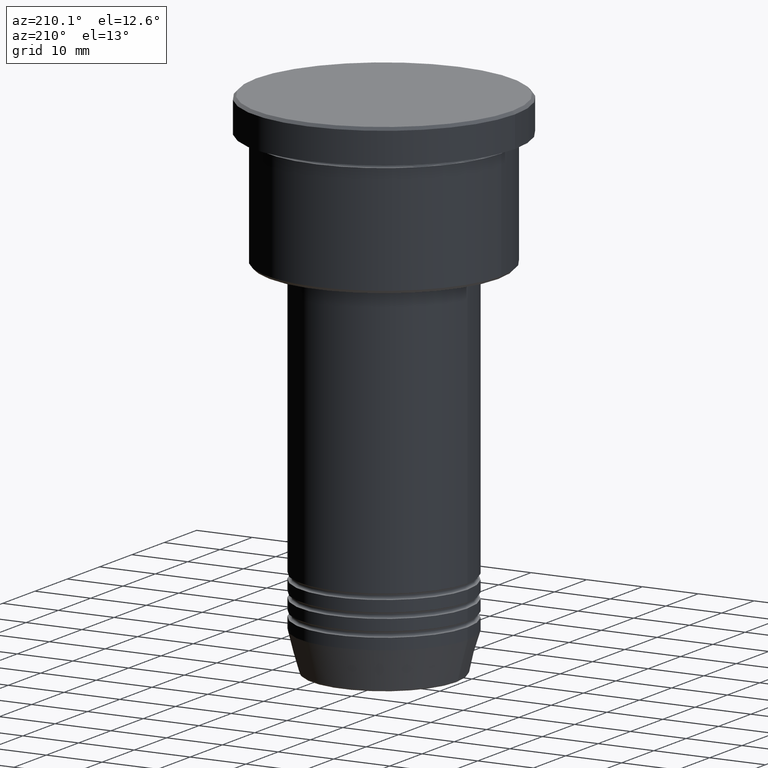
[diagram: clean part render]
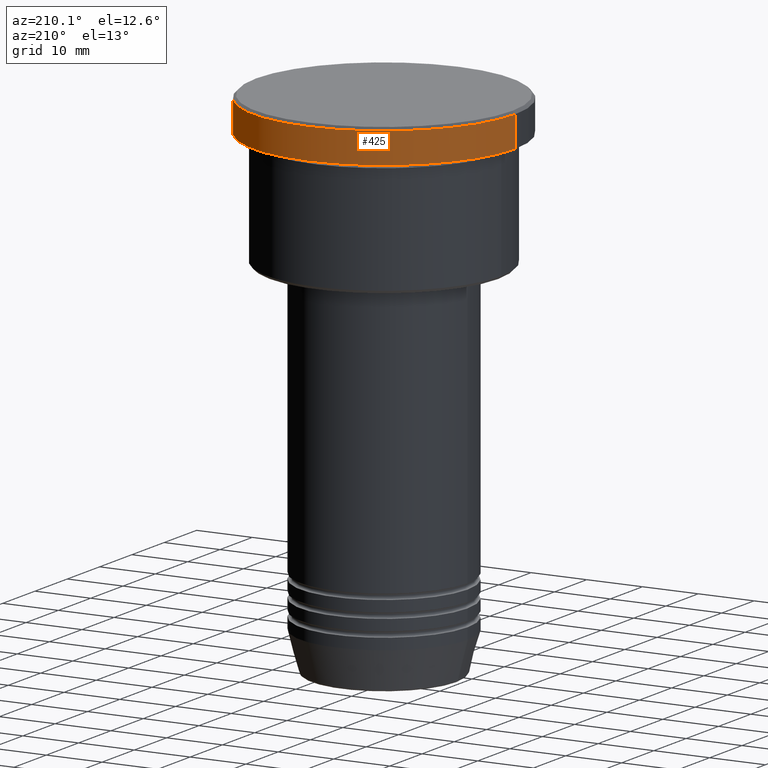
[diagram: same view with one face highlighted and labeled with its STEP entity id]
A machine part, auxiliary view. The second image highlights one B-rep face of the part: STEP entity #425.
In plain terms, the highlighted cylindrical surface (partial cylindrical patch) has radius 23.5 mm, axis along (-0, -0, 1).
Its self-contained STEP definition (entity closure, byte-faithful):
#23 = EDGE_LOOP ( 'NONE', ( #1152, #238, #389, #680 ) ) ;
#37 = DIRECTION ( 'NONE',  ( -0.000000000000000000, -0.000000000000000000, 1.000000000000000000 ) ) ;
#65 = CIRCLE ( 'NONE', #462, 23.50000000000000000 ) ;
#87 = DIRECTION ( 'NONE',  ( 1.000000000000000000, 0.000000000000000000, 0.000000000000000000 ) ) ;
#193 = CARTESIAN_POINT ( 'NONE',  ( 23.50000000000000000, 0.000000000000000000, -5.999999999999994671 ) ) ;
#221 = DIRECTION ( 'NONE',  ( -0.000000000000000000, -0.000000000000000000, 1.000000000000000000 ) ) ;
#231 = EDGE_CURVE ( 'NONE', #372, #510, #682, .T. ) ;
#238 = ORIENTED_EDGE ( 'NONE', *, *, #1087, .T. ) ;
#308 = AXIS2_PLACEMENT_3D ( 'NONE', #820, #924, #87 ) ;
#328 = DIRECTION ( 'NONE',  ( -0.000000000000000000, -0.000000000000000000, 1.000000000000000000 ) ) ;
#371 = CARTESIAN_POINT ( 'NONE',  ( -23.50000000000000000, 2.877919977996280320E-15, -0.4999999999999865663 ) ) ;
#372 = VERTEX_POINT ( 'NONE', #193 ) ;
#389 = ORIENTED_EDGE ( 'NONE', *, *, #533, .T. ) ;
#414 = VECTOR ( 'NONE', #221, 1000.000000000000000 ) ;
#420 = CARTESIAN_POINT ( 'NONE',  ( -23.50000000000000000, 2.877919977996280320E-15, -5.999999999999994671 ) ) ;
#425 = ADVANCED_FACE ( 'NONE', ( #551 ), #547, .T. ) ;
#433 = CARTESIAN_POINT ( 'NONE',  ( 0.000000000000000000, 0.000000000000000000, -0.4999999999999865663 ) ) ;
#462 = AXIS2_PLACEMENT_3D ( 'NONE', #433, #884, #1164 ) ;
#484 = VERTEX_POINT ( 'NONE', #371 ) ;
#510 = VERTEX_POINT ( 'NONE', #1069 ) ;
#533 = EDGE_CURVE ( 'NONE', #484, #510, #65, .T. ) ;
#547 = CYLINDRICAL_SURFACE ( 'NONE', #308, 23.50000000000000000 ) ;
#551 = FACE_OUTER_BOUND ( 'NONE', #23, .T. ) ;
#569 = CARTESIAN_POINT ( 'NONE',  ( 23.50000000000000000, 0.000000000000000000, 0.000000000000000000 ) ) ;
#572 = AXIS2_PLACEMENT_3D ( 'NONE', #870, #328, #1046 ) ;
#579 = VERTEX_POINT ( 'NONE', #420 ) ;
#597 = LINE ( 'NONE', #1047, #414 ) ;
#680 = ORIENTED_EDGE ( 'NONE', *, *, #231, .F. ) ;
#682 = LINE ( 'NONE', #569, #979 ) ;
#769 = EDGE_CURVE ( 'NONE', #372, #579, #1057, .T. ) ;
#820 = CARTESIAN_POINT ( 'NONE',  ( 0.000000000000000000, 0.000000000000000000, 0.000000000000000000 ) ) ;
#870 = CARTESIAN_POINT ( 'NONE',  ( 0.000000000000000000, 0.000000000000000000, -5.999999999999994671 ) ) ;
#884 = DIRECTION ( 'NONE',  ( 0.000000000000000000, 0.000000000000000000, -1.000000000000000000 ) ) ;
#924 = DIRECTION ( 'NONE',  ( -0.000000000000000000, -0.000000000000000000, 1.000000000000000000 ) ) ;
#979 = VECTOR ( 'NONE', #37, 1000.000000000000000 ) ;
#1046 = DIRECTION ( 'NONE',  ( 1.000000000000000000, 0.000000000000000000, 0.000000000000000000 ) ) ;
#1047 = CARTESIAN_POINT ( 'NONE',  ( -23.50000000000000000, 2.877919977996280320E-15, 0.000000000000000000 ) ) ;
#1057 = CIRCLE ( 'NONE', #572, 23.50000000000000000 ) ;
#1069 = CARTESIAN_POINT ( 'NONE',  ( 23.50000000000000000, 0.000000000000000000, -0.4999999999999865663 ) ) ;
#1087 = EDGE_CURVE ( 'NONE', #579, #484, #597, .T. ) ;
#1152 = ORIENTED_EDGE ( 'NONE', *, *, #769, .T. ) ;
#1164 = DIRECTION ( 'NONE',  ( 1.000000000000000000, 0.000000000000000000, 0.000000000000000000 ) ) ;